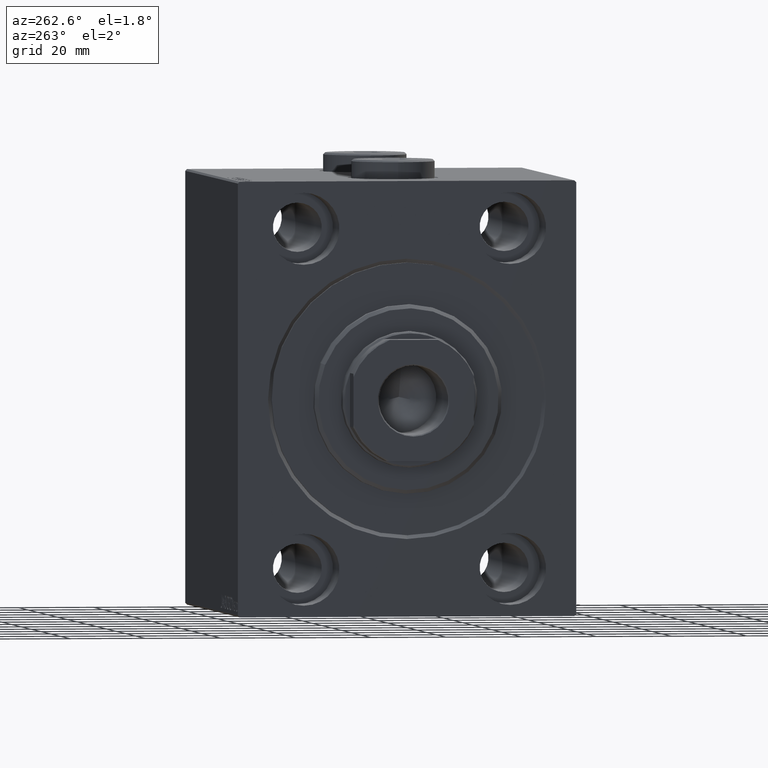
[diagram: clean part render]
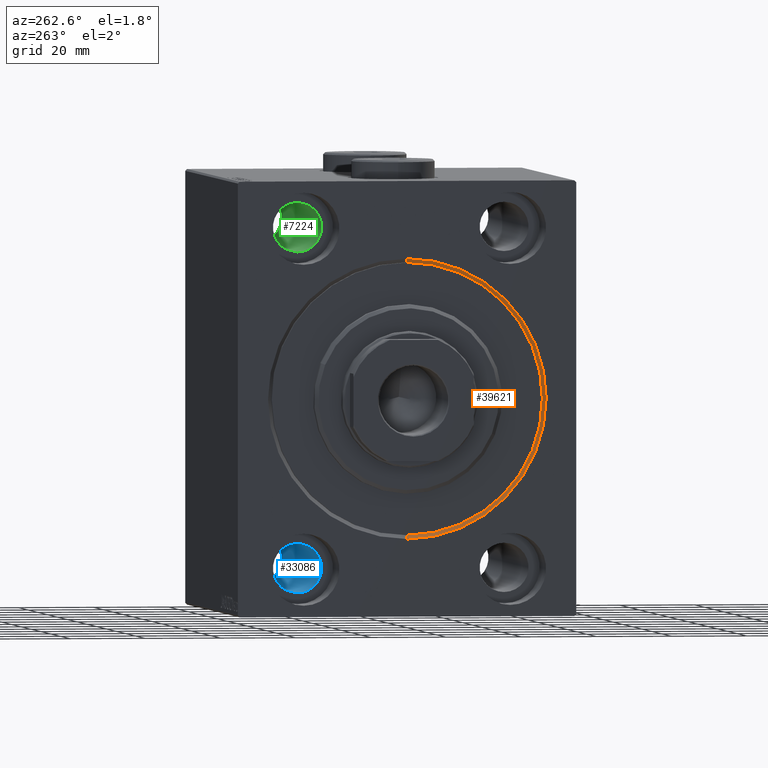
[diagram: same view with three faces highlighted in distinct colors, each labeled with its STEP entity id]
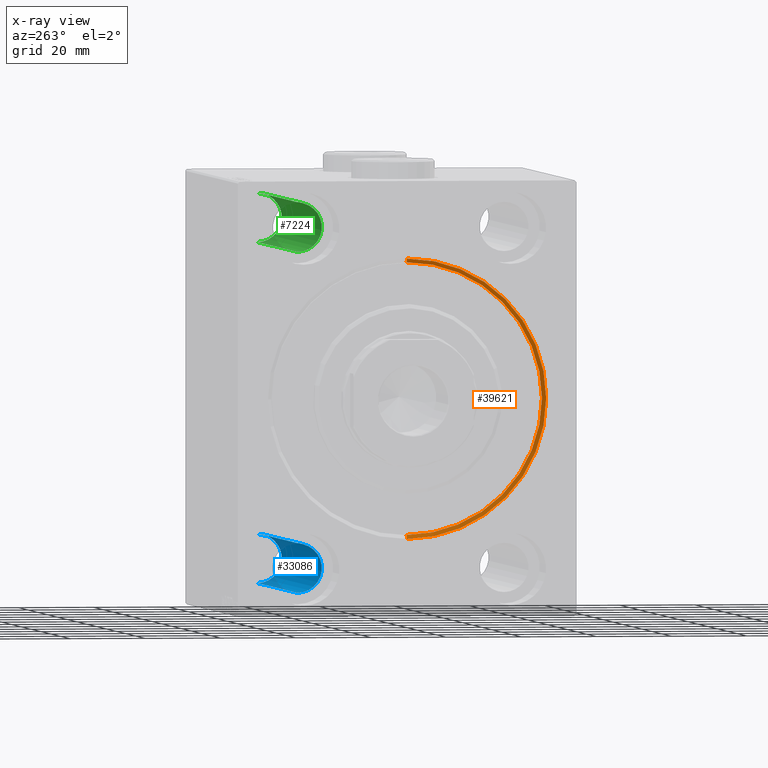
[diagram: x-ray of the same camera — body ghosted, the three highlighted faces saturated]
A machine part, auxiliary view with three faces highlighted in distinct colors.
The next image is the same camera in x-ray (body ghosted, the three faces saturated) — at least one of them is partly hidden behind the body in this view.
Their STEP definitions:

[orange] entity #39621 — the highlighted conical surface has half-angle 45 deg.
#1046 = DIRECTION ( 'NONE',  ( -0.7071067811865425767, 0.000000000000000000, 0.7071067811865525687 ) ) ;
#1822 = LINE ( 'NONE', #28594, #24885 ) ;
#3798 = DIRECTION ( 'NONE',  ( -1.000000000000000000, 0.000000000000000000, 0.000000000000000000 ) ) ;
#4705 = CARTESIAN_POINT ( 'NONE',  ( 1.000000000000021760, 0.000000000000000000, 36.00000000000000000 ) ) ;
#5977 = CARTESIAN_POINT ( 'NONE',  ( 0.000000000000000000, 4.531193156845210737E-15, -37.00000000000003553 ) ) ;
#6629 = EDGE_CURVE ( 'NONE', #42842, #24715, #1822, .T. ) ;
#7866 = EDGE_CURVE ( 'NONE', #43485, #9641, #25281, .T. ) ;
#8930 = CARTESIAN_POINT ( 'NONE',  ( 0.000000000000000000, 0.000000000000000000, 0.000000000000000000 ) ) ;
#9372 = DIRECTION ( 'NONE',  ( 0.000000000000000000, 0.000000000000000000, -1.000000000000000000 ) ) ;
#9641 = VERTEX_POINT ( 'NONE', #32123 ) ;
#11486 = AXIS2_PLACEMENT_3D ( 'NONE', #42461, #3798, #17726 ) ;
#12973 = ORIENTED_EDGE ( 'NONE', *, *, #6629, .T. ) ;
#13176 = EDGE_LOOP ( 'NONE', ( #41257, #12973, #33889, #33167 ) ) ;
#14574 = DIRECTION ( 'NONE',  ( 0.000000000000000000, 0.000000000000000000, 1.000000000000000000 ) ) ;
#15460 = CONICAL_SURFACE ( 'NONE', #37399, 36.00000000000000000, 0.7853981633974552734 ) ;
#17726 = DIRECTION ( 'NONE',  ( 0.000000000000000000, 0.000000000000000000, -1.000000000000000000 ) ) ;
#19941 = CARTESIAN_POINT ( 'NONE',  ( 1.000000000000021760, 0.000000000000000000, 36.00000000000000000 ) ) ;
#22531 = CARTESIAN_POINT ( 'NONE',  ( 1.000000000000021760, 4.408728476930470856E-15, -36.00000000000000000 ) ) ;
#22868 = DIRECTION ( 'NONE',  ( 1.000000000000000000, 0.000000000000000000, 0.000000000000000000 ) ) ;
#23921 = AXIS2_PLACEMENT_3D ( 'NONE', #8930, #22868, #9372 ) ;
#24715 = VERTEX_POINT ( 'NONE', #5977 ) ;
#24885 = VECTOR ( 'NONE', #25391, 999.9999999999998863 ) ;
#25281 = LINE ( 'NONE', #4705, #41729 ) ;
#25391 = DIRECTION ( 'NONE',  ( -0.7071067811865425767, 8.659560562354994488E-17, -0.7071067811865525687 ) ) ;
#27144 = EDGE_CURVE ( 'NONE', #42842, #43485, #39987, .T. ) ;
#28594 = CARTESIAN_POINT ( 'NONE',  ( 1.000000000000021760, 4.408728476930470856E-15, -36.00000000000000000 ) ) ;
#28783 = EDGE_CURVE ( 'NONE', #9641, #24715, #43687, .T. ) ;
#31283 = FACE_OUTER_BOUND ( 'NONE', #13176, .T. ) ;
#32123 = CARTESIAN_POINT ( 'NONE',  ( 0.000000000000000000, 0.000000000000000000, 37.00000000000003553 ) ) ;
#33167 = ORIENTED_EDGE ( 'NONE', *, *, #7866, .F. ) ;
#33889 = ORIENTED_EDGE ( 'NONE', *, *, #28783, .F. ) ;
#37399 = AXIS2_PLACEMENT_3D ( 'NONE', #42268, #45226, #14574 ) ;
#39621 = ADVANCED_FACE ( 'NONE', ( #31283 ), #15460, .F. ) ;
#39987 = CIRCLE ( 'NONE', #11486, 36.00000000000000000 ) ;
#41257 = ORIENTED_EDGE ( 'NONE', *, *, #27144, .F. ) ;
#41729 = VECTOR ( 'NONE', #1046, 999.9999999999998863 ) ;
#42268 = CARTESIAN_POINT ( 'NONE',  ( 1.000000000000021760, 0.000000000000000000, 0.000000000000000000 ) ) ;
#42461 = CARTESIAN_POINT ( 'NONE',  ( 1.000000000000021760, 0.000000000000000000, 0.000000000000000000 ) ) ;
#42842 = VERTEX_POINT ( 'NONE', #22531 ) ;
#43485 = VERTEX_POINT ( 'NONE', #19941 ) ;
#43687 = CIRCLE ( 'NONE', #23921, 37.00000000000003553 ) ;
#45226 = DIRECTION ( 'NONE',  ( -1.000000000000000000, 0.000000000000000000, 0.000000000000000000 ) ) ;

[blue] entity #33086 — the highlighted cylindrical surface (edge-blend (fillet) strip) has radius 6.5 mm, axis along (-1, -0, -0).
#910 = LINE ( 'NONE', #11418, #42645 ) ;
#2281 = ORIENTED_EDGE ( 'NONE', *, *, #13554, .F. ) ;
#2684 = ORIENTED_EDGE ( 'NONE', *, *, #23734, .F. ) ;
#3424 = CARTESIAN_POINT ( 'NONE',  ( 108.0000000000000000, 27.49999999999998934, -44.99999999999998579 ) ) ;
#4459 = CARTESIAN_POINT ( 'NONE',  ( 12.99999999999999822, 27.49999999999998934, -38.49999999999998579 ) ) ;
#5822 = AXIS2_PLACEMENT_3D ( 'NONE', #3424, #42084, #17346 ) ;
#6146 = LINE ( 'NONE', #12565, #8932 ) ;
#8659 = DIRECTION ( 'NONE',  ( 0.000000000000000000, 0.000000000000000000, 1.000000000000000000 ) ) ;
#8932 = VECTOR ( 'NONE', #29724, 1000.000000000000000 ) ;
#9466 = DIRECTION ( 'NONE',  ( -1.000000000000000000, -0.000000000000000000, -0.000000000000000000 ) ) ;
#10042 = VERTEX_POINT ( 'NONE', #16830 ) ;
#11418 = CARTESIAN_POINT ( 'NONE',  ( 108.0000000000000000, 27.49999999999998934, -38.49999999999998579 ) ) ;
#12565 = CARTESIAN_POINT ( 'NONE',  ( 108.0000000000000000, 27.49999999999998934, -51.49999999999998579 ) ) ;
#13554 = EDGE_CURVE ( 'NONE', #33011, #43089, #910, .T. ) ;
#13562 = CARTESIAN_POINT ( 'NONE',  ( 95.00000000000000000, 27.49999999999998934, -44.99999999999998579 ) ) ;
#16830 = CARTESIAN_POINT ( 'NONE',  ( 95.00000000000000000, 27.49999999999998934, -51.49999999999998579 ) ) ;
#17346 = DIRECTION ( 'NONE',  ( 0.000000000000000000, 0.000000000000000000, 1.000000000000000000 ) ) ;
#18455 = EDGE_LOOP ( 'NONE', ( #2684, #34551, #39253, #2281 ) ) ;
#20780 = FACE_OUTER_BOUND ( 'NONE', #18455, .T. ) ;
#21472 = DIRECTION ( 'NONE',  ( -1.000000000000000000, -0.000000000000000000, -0.000000000000000000 ) ) ;
#22596 = CIRCLE ( 'NONE', #27730, 6.499999999999999112 ) ;
#23208 = CIRCLE ( 'NONE', #23926, 6.499999999999999112 ) ;
#23734 = EDGE_CURVE ( 'NONE', #10042, #33011, #23208, .T. ) ;
#23926 = AXIS2_PLACEMENT_3D ( 'NONE', #13562, #9466, #31416 ) ;
#25644 = VERTEX_POINT ( 'NONE', #34127 ) ;
#27730 = AXIS2_PLACEMENT_3D ( 'NONE', #37469, #44545, #8659 ) ;
#29724 = DIRECTION ( 'NONE',  ( -1.000000000000000000, -0.000000000000000000, -0.000000000000000000 ) ) ;
#31416 = DIRECTION ( 'NONE',  ( 0.000000000000000000, 0.000000000000000000, -1.000000000000000000 ) ) ;
#33011 = VERTEX_POINT ( 'NONE', #38427 ) ;
#33086 = ADVANCED_FACE ( 'NONE', ( #20780 ), #34772, .F. ) ;
#33221 = EDGE_CURVE ( 'NONE', #25644, #43089, #22596, .T. ) ;
#34127 = CARTESIAN_POINT ( 'NONE',  ( 12.99999999999999822, 27.49999999999998934, -51.49999999999998579 ) ) ;
#34551 = ORIENTED_EDGE ( 'NONE', *, *, #44715, .T. ) ;
#34772 = CYLINDRICAL_SURFACE ( 'NONE', #5822, 6.499999999999999112 ) ;
#37469 = CARTESIAN_POINT ( 'NONE',  ( 12.99999999999999822, 27.49999999999998934, -44.99999999999998579 ) ) ;
#38427 = CARTESIAN_POINT ( 'NONE',  ( 95.00000000000000000, 27.49999999999998934, -38.49999999999998579 ) ) ;
#39253 = ORIENTED_EDGE ( 'NONE', *, *, #33221, .T. ) ;
#42084 = DIRECTION ( 'NONE',  ( -1.000000000000000000, -0.000000000000000000, -0.000000000000000000 ) ) ;
#42645 = VECTOR ( 'NONE', #21472, 1000.000000000000000 ) ;
#43089 = VERTEX_POINT ( 'NONE', #4459 ) ;
#44545 = DIRECTION ( 'NONE',  ( -1.000000000000000000, 0.000000000000000000, 0.000000000000000000 ) ) ;
#44715 = EDGE_CURVE ( 'NONE', #10042, #25644, #6146, .T. ) ;

[green] entity #7224 — the highlighted cylindrical surface (edge-blend (fillet) strip) has radius 6.5 mm, axis along (-1, -0, -0).
#179 = DIRECTION ( 'NONE',  ( 0.000000000000000000, 0.000000000000000000, -1.000000000000000000 ) ) ;
#1925 = DIRECTION ( 'NONE',  ( -1.000000000000000000, -0.000000000000000000, -0.000000000000000000 ) ) ;
#2920 = VERTEX_POINT ( 'NONE', #40266 ) ;
#2949 = EDGE_CURVE ( 'NONE', #17620, #5931, #5495, .T. ) ;
#5495 = LINE ( 'NONE', #40039, #32121 ) ;
#5931 = VERTEX_POINT ( 'NONE', #42493 ) ;
#7224 = ADVANCED_FACE ( 'NONE', ( #15151 ), #25453, .F. ) ;
#7381 = CARTESIAN_POINT ( 'NONE',  ( 108.0000000000000000, 27.50000000000001066, 45.00000000000000711 ) ) ;
#7470 = EDGE_CURVE ( 'NONE', #17620, #21352, #38075, .T. ) ;
#9443 = CARTESIAN_POINT ( 'NONE',  ( 12.99999999999999822, 27.50000000000001066, 45.00000000000000711 ) ) ;
#12073 = ORIENTED_EDGE ( 'NONE', *, *, #43474, .T. ) ;
#13895 = DIRECTION ( 'NONE',  ( -1.000000000000000000, -0.000000000000000000, -0.000000000000000000 ) ) ;
#15151 = FACE_OUTER_BOUND ( 'NONE', #40307, .T. ) ;
#15192 = EDGE_CURVE ( 'NONE', #21352, #2920, #33490, .T. ) ;
#15329 = CARTESIAN_POINT ( 'NONE',  ( 95.00000000000000000, 27.50000000000001066, 51.50000000000000711 ) ) ;
#15457 = AXIS2_PLACEMENT_3D ( 'NONE', #30674, #13895, #179 ) ;
#16306 = CARTESIAN_POINT ( 'NONE',  ( 108.0000000000000000, 27.50000000000001066, 51.50000000000000711 ) ) ;
#16729 = DIRECTION ( 'NONE',  ( -1.000000000000000000, 0.000000000000000000, 0.000000000000000000 ) ) ;
#17433 = ORIENTED_EDGE ( 'NONE', *, *, #2949, .T. ) ;
#17620 = VERTEX_POINT ( 'NONE', #24931 ) ;
#19633 = DIRECTION ( 'NONE',  ( -1.000000000000000000, -0.000000000000000000, -0.000000000000000000 ) ) ;
#21002 = ORIENTED_EDGE ( 'NONE', *, *, #7470, .F. ) ;
#21352 = VERTEX_POINT ( 'NONE', #15329 ) ;
#24931 = CARTESIAN_POINT ( 'NONE',  ( 95.00000000000000000, 27.50000000000001066, 38.50000000000000711 ) ) ;
#25453 = CYLINDRICAL_SURFACE ( 'NONE', #36597, 6.499999999999999112 ) ;
#28420 = DIRECTION ( 'NONE',  ( -1.000000000000000000, -0.000000000000000000, -0.000000000000000000 ) ) ;
#30674 = CARTESIAN_POINT ( 'NONE',  ( 95.00000000000000000, 27.50000000000001066, 45.00000000000000711 ) ) ;
#32121 = VECTOR ( 'NONE', #19633, 1000.000000000000000 ) ;
#32334 = DIRECTION ( 'NONE',  ( 0.000000000000000000, 0.000000000000000000, 1.000000000000000000 ) ) ;
#33490 = LINE ( 'NONE', #16306, #41933 ) ;
#33723 = AXIS2_PLACEMENT_3D ( 'NONE', #9443, #16729, #34377 ) ;
#34377 = DIRECTION ( 'NONE',  ( 0.000000000000000000, 0.000000000000000000, 1.000000000000000000 ) ) ;
#36597 = AXIS2_PLACEMENT_3D ( 'NONE', #7381, #28420, #32334 ) ;
#37374 = CIRCLE ( 'NONE', #33723, 6.499999999999999112 ) ;
#38075 = CIRCLE ( 'NONE', #15457, 6.499999999999999112 ) ;
#38701 = ORIENTED_EDGE ( 'NONE', *, *, #15192, .F. ) ;
#40039 = CARTESIAN_POINT ( 'NONE',  ( 108.0000000000000000, 27.50000000000001066, 38.50000000000000711 ) ) ;
#40266 = CARTESIAN_POINT ( 'NONE',  ( 12.99999999999999822, 27.50000000000001066, 51.50000000000000711 ) ) ;
#40307 = EDGE_LOOP ( 'NONE', ( #21002, #17433, #12073, #38701 ) ) ;
#41933 = VECTOR ( 'NONE', #1925, 1000.000000000000000 ) ;
#42493 = CARTESIAN_POINT ( 'NONE',  ( 12.99999999999999822, 27.50000000000001066, 38.50000000000000711 ) ) ;
#43474 = EDGE_CURVE ( 'NONE', #5931, #2920, #37374, .T. ) ;